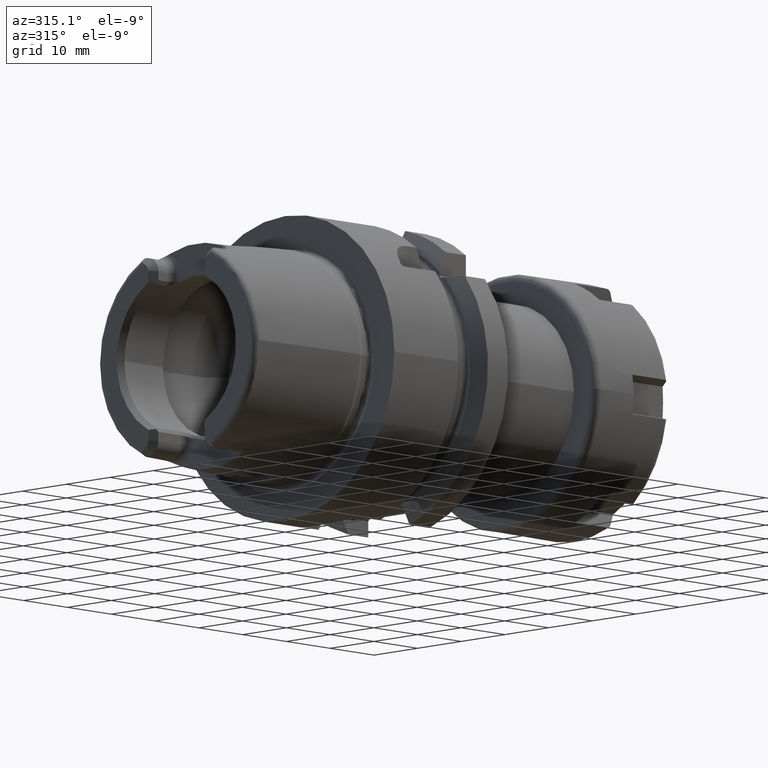
[diagram: clean part render]
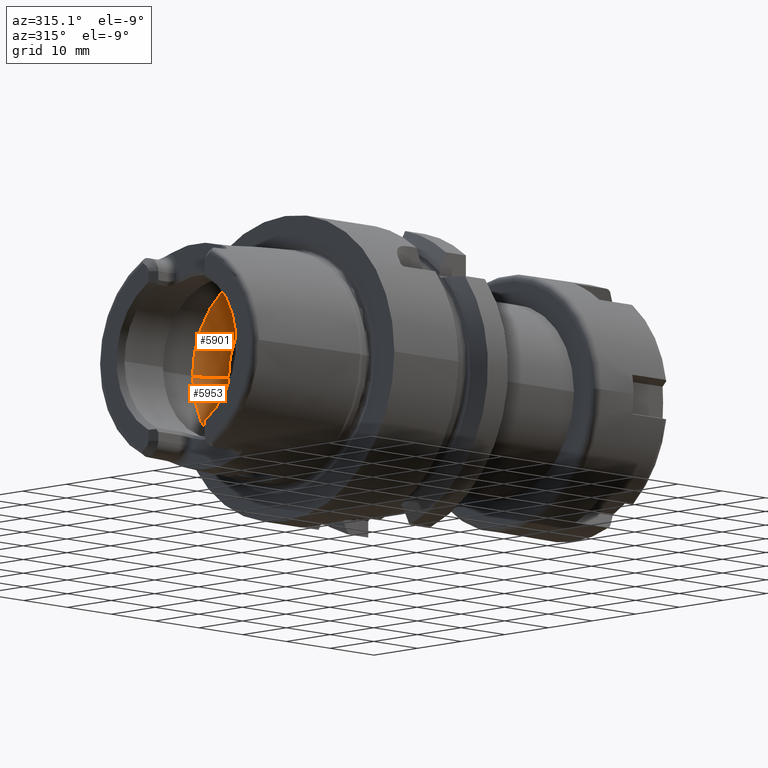
[diagram: same view with one multi-face feature highlighted, each face labeled with its STEP entity id]
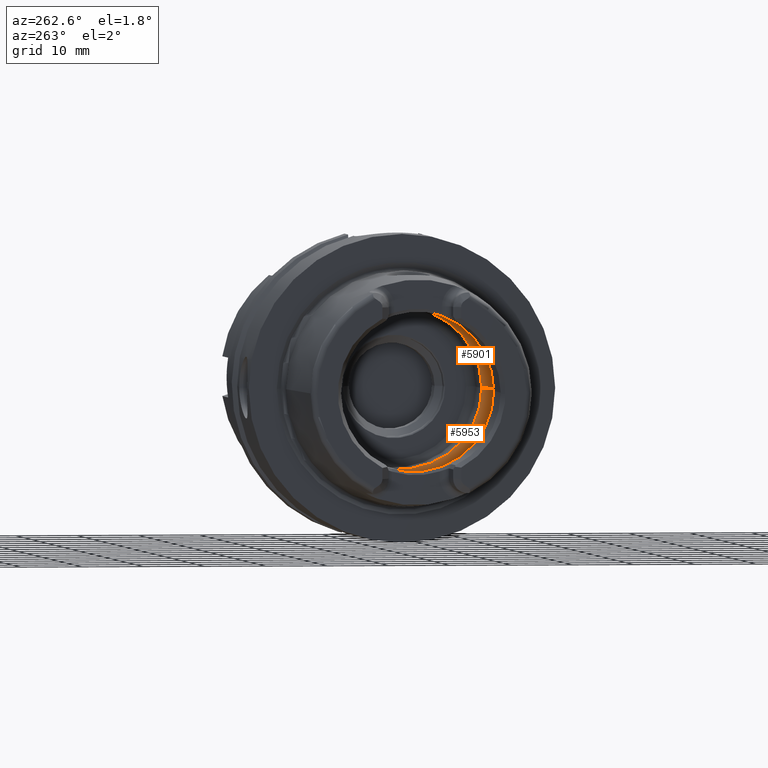
[diagram: same view with one multi-face feature highlighted, each face labeled with its STEP entity id]
A machine part, auxiliary view. The highlighted faces form ONE feature: a constant-radius fillet chain: 2 tangent blend faces with common blend radius 6 mm. The faces share edges in the B-rep.
A second angle (auxiliary view) of the same feature is appended — it is thin or edge-on in the first view.
Their STEP definitions:
[1] entity #5901 (Torus):
#2169=CARTESIAN_POINT('',(-4.5E0,0.E0,1.599819131363E1));
#2170=CARTESIAN_POINT('',(-4.5E0,1.393933285662E-1,1.599819131363E1));
#2171=CARTESIAN_POINT('',(-4.519404191081E0,4.194544956419E-1,
1.599688659151E1));
#2172=CARTESIAN_POINT('',(-4.608514252748E0,8.368427430076E-1,
1.599033330284E1));
#2173=CARTESIAN_POINT('',(-4.756111350291E0,1.237284710770E0,1.597758887261E1));
#2174=CARTESIAN_POINT('',(-4.955426617124E0,1.607186531253E0,1.595666056940E1));
#2175=CARTESIAN_POINT('',(-5.118862175482E0,1.829998924173E0,1.593561410958E1));
#2176=CARTESIAN_POINT('',(-5.207075858867E0,1.934553923521E0,1.592291120106E1));
#2178=CARTESIAN_POINT('',(-5.207075858867E0,-1.934553923521E0,
1.592291120106E1));
#2179=CARTESIAN_POINT('',(-5.118900024865E0,-1.830043785039E0,
1.593560865920E1));
#2180=CARTESIAN_POINT('',(-4.955463769315E0,-1.607278697505E0,
1.595665773659E1));
#2181=CARTESIAN_POINT('',(-4.755897029316E0,-1.236851245102E0,
1.597761021240E1));
#2182=CARTESIAN_POINT('',(-4.608377605542E0,-8.363601809663E-1,
1.599034363703E1));
#2183=CARTESIAN_POINT('',(-4.519347393058E0,-4.189919635640E-1,
1.599689053867E1));
#2184=CARTESIAN_POINT('',(-4.5E0,-1.392080742489E-1,1.599819131363E1));
#2185=CARTESIAN_POINT('',(-4.5E0,0.E0,1.599819131363E1));
#2187=CARTESIAN_POINT('',(0.E0,0.E0,0.E0));
#2188=DIRECTION('',(1.E0,0.E0,0.E0));
#2189=DIRECTION('',(0.E0,1.E0,0.E0));
#2190=AXIS2_PLACEMENT_3D('',#2187,#2188,#2189);
#2211=CARTESIAN_POINT('',(-5.207075858867E0,0.E0,0.E0));
#2212=DIRECTION('',(1.E0,0.E0,0.E0));
#2213=DIRECTION('',(0.E0,1.E0,0.E0));
#2214=AXIS2_PLACEMENT_3D('',#2211,#2212,#2213);
#2216=CARTESIAN_POINT('',(-5.207075858867E0,0.E0,0.E0));
#2217=DIRECTION('',(1.E0,0.E0,0.E0));
#2218=DIRECTION('',(0.E0,-1.206080999702E-1,9.927001995676E-1));
#2219=AXIS2_PLACEMENT_3D('',#2216,#2217,#2218);
#2305=CARTESIAN_POINT('',(-5.207075858867E0,1.004E1,0.E0));
#2306=DIRECTION('',(0.E0,0.E0,1.E0));
#2307=DIRECTION('',(8.678459764779E-1,4.968333333333E-1,0.E0));
#2308=AXIS2_PLACEMENT_3D('',#2305,#2306,#2307);
#2315=CARTESIAN_POINT('',(-5.207075858867E0,-1.004E1,0.E0));
#2316=DIRECTION('',(0.E0,0.E0,-1.E0));
#2317=DIRECTION('',(8.678459764779E-1,-4.968333333333E-1,0.E0));
#2318=AXIS2_PLACEMENT_3D('',#2315,#2316,#2317);
#3113=CARTESIAN_POINT('',(-4.5E0,0.E0,1.599819131363E1));
#3114=VERTEX_POINT('',#3113);
#3135=CARTESIAN_POINT('',(0.E0,1.3021E1,0.E0));
#3136=VERTEX_POINT('',#3135);
#3137=CARTESIAN_POINT('',(-5.207075858867E0,1.604E1,0.E0));
#3138=VERTEX_POINT('',#3137);
#3147=CARTESIAN_POINT('',(0.E0,-1.3021E1,0.E0));
#3148=VERTEX_POINT('',#3147);
#3149=CARTESIAN_POINT('',(-5.207075858867E0,-1.604E1,0.E0));
#3150=VERTEX_POINT('',#3149);
#3167=VERTEX_POINT('',#2176);
#3168=VERTEX_POINT('',#2178);
#5882=CARTESIAN_POINT('',(-5.207075858867E0,0.E0,0.E0));
#5883=DIRECTION('',(1.E0,0.E0,0.E0));
#5884=DIRECTION('',(0.E0,-1.E0,0.E0));
#5885=AXIS2_PLACEMENT_3D('',#5882,#5883,#5884);
#5886=TOROIDAL_SURFACE('',#5885,1.004E1,6.E0);
#5887=ORIENTED_EDGE('',*,*,#5859,.F.);
#5888=ORIENTED_EDGE('',*,*,#5633,.F.);
#5890=ORIENTED_EDGE('',*,*,#5889,.T.);
#5892=ORIENTED_EDGE('',*,*,#5891,.F.);
#5894=ORIENTED_EDGE('',*,*,#5893,.F.);
#5896=ORIENTED_EDGE('',*,*,#5895,.T.);
#5898=ORIENTED_EDGE('',*,*,#5897,.T.);
#5899=EDGE_LOOP('',(#5887,#5888,#5890,#5892,#5894,#5896,#5898));
#5900=FACE_OUTER_BOUND('',#5899,.F.);
#5901=ADVANCED_FACE('',(#5900),#5886,.F.);
#2177=B_SPLINE_CURVE_WITH_KNOTS('',3,(#2169,#2170,#2171,#2172,#2173,#2174,#2175,
#2176),.UNSPECIFIED.,.F.,.F.,(4,1,1,1,1,4),(0.E0,2.E-1,4.E-1,6.E-1,8.E-1,1.E0),
.UNSPECIFIED.);
#2186=B_SPLINE_CURVE_WITH_KNOTS('',3,(#2178,#2179,#2180,#2181,#2182,#2183,#2184,
#2185),.UNSPECIFIED.,.F.,.F.,(4,1,1,1,1,4),(0.E0,2.E-1,4.E-1,6.E-1,8.E-1,1.E0),
.UNSPECIFIED.);
#2191=CIRCLE('',#2190,1.3021E1);
#2215=CIRCLE('',#2214,1.604E1);
#2220=CIRCLE('',#2219,1.604E1);
#2309=CIRCLE('',#2308,6.E0);
#2319=CIRCLE('',#2318,6.E0);
#5633=EDGE_CURVE('',#3168,#3114,#2186,.T.);
#5859=EDGE_CURVE('',#3114,#3167,#2177,.T.);
#5889=EDGE_CURVE('',#3168,#3150,#2220,.T.);
#5891=EDGE_CURVE('',#3148,#3150,#2319,.T.);
#5893=EDGE_CURVE('',#3136,#3148,#2191,.T.);
#5895=EDGE_CURVE('',#3136,#3138,#2309,.T.);
#5897=EDGE_CURVE('',#3138,#3167,#2215,.T.);
[2] entity #5953 (Torus):
#2278=CARTESIAN_POINT('',(-5.207075858867E0,0.E0,0.E0));
#2279=DIRECTION('',(-1.E0,0.E0,0.E0));
#2280=DIRECTION('',(0.E0,-1.206080999702E-1,-9.927001995676E-1));
#2281=AXIS2_PLACEMENT_3D('',#2278,#2279,#2280);
#2291=CARTESIAN_POINT('',(-5.207075858867E0,0.E0,0.E0));
#2292=DIRECTION('',(-1.E0,0.E0,0.E0));
#2293=DIRECTION('',(0.E0,1.E0,0.E0));
#2294=AXIS2_PLACEMENT_3D('',#2291,#2292,#2293);
#2296=CARTESIAN_POINT('',(-5.207075858867E0,1.934553923521E0,
-1.592291120106E1));
#2297=CARTESIAN_POINT('',(-5.118824210050E0,1.829953925761E0,
-1.593561957666E1));
#2298=CARTESIAN_POINT('',(-4.955339216306E0,1.607057846558E0,
-1.595667111021E1));
#2299=CARTESIAN_POINT('',(-4.756013687200E0,1.237072947635E0,
-1.597759816412E1));
#2300=CARTESIAN_POINT('',(-4.608446533562E0,8.366068361804E-1,
-1.599033856812E1));
#2301=CARTESIAN_POINT('',(-4.519381773364E0,4.192588342496E-1,
-1.599688809406E1));
#2302=CARTESIAN_POINT('',(-4.5E0,1.393160811055E-1,-1.599819131363E1));
#2303=CARTESIAN_POINT('',(-4.5E0,0.E0,-1.599819131363E1));
#2305=CARTESIAN_POINT('',(-5.207075858867E0,1.004E1,0.E0));
#2306=DIRECTION('',(0.E0,0.E0,1.E0));
#2307=DIRECTION('',(8.678459764779E-1,4.968333333333E-1,0.E0));
#2308=AXIS2_PLACEMENT_3D('',#2305,#2306,#2307);
#2310=CARTESIAN_POINT('',(0.E0,0.E0,0.E0));
#2311=DIRECTION('',(-1.E0,0.E0,0.E0));
#2312=DIRECTION('',(0.E0,1.E0,0.E0));
#2313=AXIS2_PLACEMENT_3D('',#2310,#2311,#2312);
#2315=CARTESIAN_POINT('',(-5.207075858867E0,-1.004E1,0.E0));
#2316=DIRECTION('',(0.E0,0.E0,-1.E0));
#2317=DIRECTION('',(8.678459764779E-1,-4.968333333333E-1,0.E0));
#2318=AXIS2_PLACEMENT_3D('',#2315,#2316,#2317);
#2320=CARTESIAN_POINT('',(-4.5E0,0.E0,-1.599819131363E1));
#2321=CARTESIAN_POINT('',(-4.5E0,-1.392836551494E-1,-1.599819131363E1));
#2322=CARTESIAN_POINT('',(-4.519369128421E0,-4.191839914949E-1,
-1.599688908511E1));
#2323=CARTESIAN_POINT('',(-4.608445858898E0,-8.365987177972E-1,
-1.599033833422E1));
#2324=CARTESIAN_POINT('',(-4.755995653741E0,-1.237064902814E0,
-1.597760082811E1));
#2325=CARTESIAN_POINT('',(-4.955551470065E0,-1.607407742941E0,
-1.595664715424E1));
#2326=CARTESIAN_POINT('',(-5.118938063898E0,-1.830088870687E0,
-1.593560318152E1));
#2327=CARTESIAN_POINT('',(-5.207075858867E0,-1.934553923521E0,
-1.592291120106E1));
#3121=CARTESIAN_POINT('',(-4.5E0,0.E0,-1.599819131363E1));
#3122=VERTEX_POINT('',#3121);
#3135=CARTESIAN_POINT('',(0.E0,1.3021E1,0.E0));
#3136=VERTEX_POINT('',#3135);
#3137=CARTESIAN_POINT('',(-5.207075858867E0,1.604E1,0.E0));
#3138=VERTEX_POINT('',#3137);
#3147=CARTESIAN_POINT('',(0.E0,-1.3021E1,0.E0));
#3148=VERTEX_POINT('',#3147);
#3149=CARTESIAN_POINT('',(-5.207075858867E0,-1.604E1,0.E0));
#3150=VERTEX_POINT('',#3149);
#3169=VERTEX_POINT('',#2296);
#3170=VERTEX_POINT('',#2327);
#5938=CARTESIAN_POINT('',(-5.207075858867E0,0.E0,0.E0));
#5939=DIRECTION('',(1.E0,0.E0,0.E0));
#5940=DIRECTION('',(0.E0,-1.E0,0.E0));
#5941=AXIS2_PLACEMENT_3D('',#5938,#5939,#5940);
#5942=TOROIDAL_SURFACE('',#5941,1.004E1,6.E0);
#5943=ORIENTED_EDGE('',*,*,#5876,.F.);
#5944=ORIENTED_EDGE('',*,*,#5933,.F.);
#5945=ORIENTED_EDGE('',*,*,#5895,.F.);
#5947=ORIENTED_EDGE('',*,*,#5946,.T.);
#5948=ORIENTED_EDGE('',*,*,#5891,.T.);
#5949=ORIENTED_EDGE('',*,*,#5927,.F.);
#5950=ORIENTED_EDGE('',*,*,#5648,.F.);
#5951=EDGE_LOOP('',(#5943,#5944,#5945,#5947,#5948,#5949,#5950));
#5952=FACE_OUTER_BOUND('',#5951,.F.);
#5953=ADVANCED_FACE('',(#5952),#5942,.F.);
#2282=CIRCLE('',#2281,1.604E1);
#2295=CIRCLE('',#2294,1.604E1);
#2304=B_SPLINE_CURVE_WITH_KNOTS('',3,(#2296,#2297,#2298,#2299,#2300,#2301,#2302,
#2303),.UNSPECIFIED.,.F.,.F.,(4,1,1,1,1,4),(0.E0,2.E-1,4.E-1,6.E-1,8.E-1,1.E0),
.UNSPECIFIED.);
#2309=CIRCLE('',#2308,6.E0);
#2314=CIRCLE('',#2313,1.3021E1);
#2319=CIRCLE('',#2318,6.E0);
#2328=B_SPLINE_CURVE_WITH_KNOTS('',3,(#2320,#2321,#2322,#2323,#2324,#2325,#2326,
#2327),.UNSPECIFIED.,.F.,.F.,(4,1,1,1,1,4),(0.E0,2.E-1,4.E-1,6.E-1,8.E-1,1.E0),
.UNSPECIFIED.);
#5648=EDGE_CURVE('',#3122,#3170,#2328,.T.);
#5876=EDGE_CURVE('',#3169,#3122,#2304,.T.);
#5891=EDGE_CURVE('',#3148,#3150,#2319,.T.);
#5895=EDGE_CURVE('',#3136,#3138,#2309,.T.);
#5927=EDGE_CURVE('',#3170,#3150,#2282,.T.);
#5933=EDGE_CURVE('',#3138,#3169,#2295,.T.);
#5946=EDGE_CURVE('',#3136,#3148,#2314,.T.);